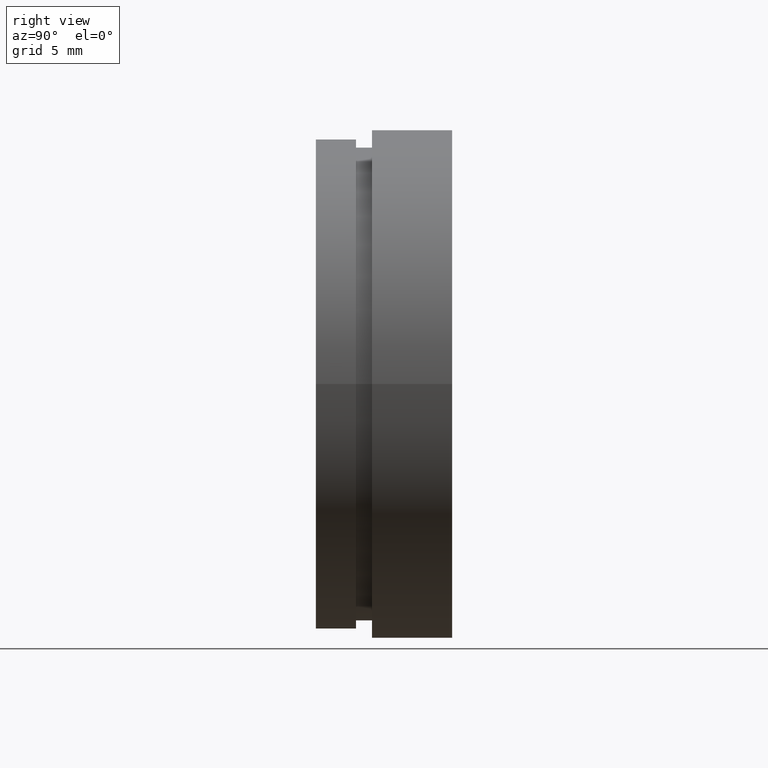
[diagram: clean part render]
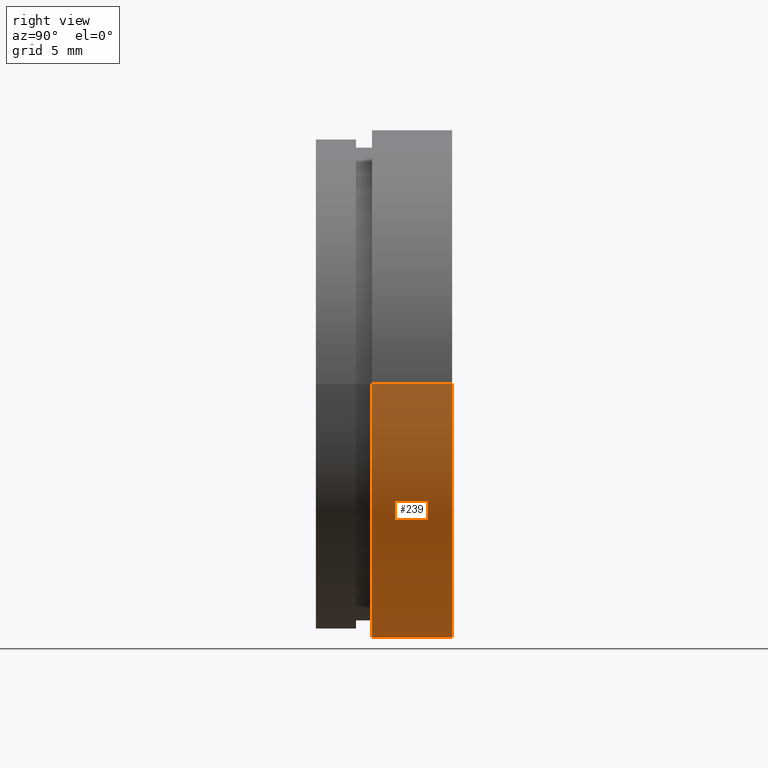
[diagram: same view with one face highlighted and labeled with its STEP entity id]
A machine part, right view. The second image highlights one B-rep face of the part: STEP entity #239.
In plain terms, the highlighted cylindrical surface (partial cylindrical patch) has radius 15.875 mm, axis along (-0, 1, -0).
Its self-contained STEP definition (entity closure, byte-faithful):
#1 = DIRECTION ( 'NONE',  ( -1.000000000000000000, -1.092739197465705300E-016, 0.0000000000000000000 ) ) ;
#28 = AXIS2_PLACEMENT_3D ( 'NONE', #64, #294, #1 ) ;
#37 = CARTESIAN_POINT ( 'NONE',  ( 15.87500000000000000, 7.954535588880335500, 1.944126793646423200E-015 ) ) ;
#45 = LINE ( 'NONE', #110, #390 ) ;
#53 = EDGE_CURVE ( 'NONE', #297, #159, #59, .T. ) ;
#54 = AXIS2_PLACEMENT_3D ( 'NONE', #331, #180, #146 ) ;
#59 = CIRCLE ( 'NONE', #28, 15.87500000000000000 ) ;
#64 = CARTESIAN_POINT ( 'NONE',  ( 1.093791163676037000E-015, 7.954535588880333700, 0.0000000000000000000 ) ) ;
#79 = VERTEX_POINT ( 'NONE', #362 ) ;
#84 = DIRECTION ( 'NONE',  ( -1.224646799147351000E-016, 1.000000000000000000, -0.0000000000000000000 ) ) ;
#98 = EDGE_CURVE ( 'NONE', #194, #79, #177, .T. ) ;
#99 = FACE_OUTER_BOUND ( 'NONE', #132, .T. ) ;
#110 = CARTESIAN_POINT ( 'NONE',  ( 15.87500000000000000, 16.88601823708208000, 1.944126793646423200E-015 ) ) ;
#111 = DIRECTION ( 'NONE',  ( -1.000000000000000000, -1.092739197465705500E-016, 0.0000000000000000000 ) ) ;
#114 = ORIENTED_EDGE ( 'NONE', *, *, #204, .T. ) ;
#116 = CARTESIAN_POINT ( 'NONE',  ( -15.87500000000000000, 7.954535588880332000, 0.0000000000000000000 ) ) ;
#132 = EDGE_LOOP ( 'NONE', ( #267, #299, #114, #255 ) ) ;
#146 = DIRECTION ( 'NONE',  ( -1.000000000000000000, -2.185478394931410600E-016, 0.0000000000000000000 ) ) ;
#158 = LINE ( 'NONE', #315, #175 ) ;
#159 = VERTEX_POINT ( 'NONE', #116 ) ;
#175 = VECTOR ( 'NONE', #84, 1000.000000000000000 ) ;
#177 = CIRCLE ( 'NONE', #319, 15.87499999999999600 ) ;
#180 = DIRECTION ( 'NONE',  ( -1.224646799147351000E-016, 1.000000000000000000, -0.0000000000000000000 ) ) ;
#194 = VERTEX_POINT ( 'NONE', #354 ) ;
#204 = EDGE_CURVE ( 'NONE', #79, #159, #158, .T. ) ;
#239 = ADVANCED_FACE ( 'NONE', ( #99 ), #254, .T. ) ;
#247 = DIRECTION ( 'NONE',  ( -1.224646799147351000E-016, 1.000000000000000000, -0.0000000000000000000 ) ) ;
#254 = CYLINDRICAL_SURFACE ( 'NONE', #54, 15.87500000000000000 ) ;
#255 = ORIENTED_EDGE ( 'NONE', *, *, #53, .F. ) ;
#267 = ORIENTED_EDGE ( 'NONE', *, *, #342, .F. ) ;
#294 = DIRECTION ( 'NONE',  ( -1.224646799147351000E-016, 1.000000000000000000, -0.0000000000000000000 ) ) ;
#297 = VERTEX_POINT ( 'NONE', #37 ) ;
#299 = ORIENTED_EDGE ( 'NONE', *, *, #98, .T. ) ;
#315 = CARTESIAN_POINT ( 'NONE',  ( -15.87500000000000000, 16.88601823708207300, 0.0000000000000000000 ) ) ;
#319 = AXIS2_PLACEMENT_3D ( 'NONE', #410, #247, #111 ) ;
#331 = CARTESIAN_POINT ( 'NONE',  ( 0.0000000000000000000, 16.88601823708207700, 0.0000000000000000000 ) ) ;
#342 = EDGE_CURVE ( 'NONE', #194, #297, #45, .T. ) ;
#354 = CARTESIAN_POINT ( 'NONE',  ( 15.87499999999999600, 2.954535588880334600, 1.944126793646422800E-015 ) ) ;
#362 = CARTESIAN_POINT ( 'NONE',  ( -15.87499999999999600, 2.954535588880331100, 0.0000000000000000000 ) ) ;
#390 = VECTOR ( 'NONE', #408, 1000.000000000000000 ) ;
#408 = DIRECTION ( 'NONE',  ( -1.224646799147351000E-016, 1.000000000000000000, -0.0000000000000000000 ) ) ;
#410 = CARTESIAN_POINT ( 'NONE',  ( 1.706114563249712500E-015, 2.954535588880332900, 0.0000000000000000000 ) ) ;